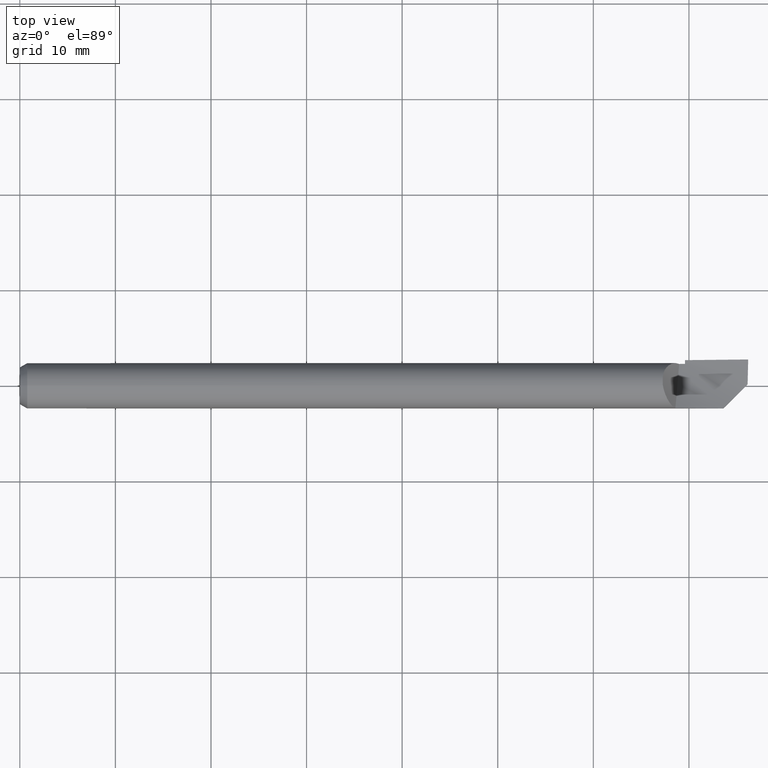
[diagram: clean part render]
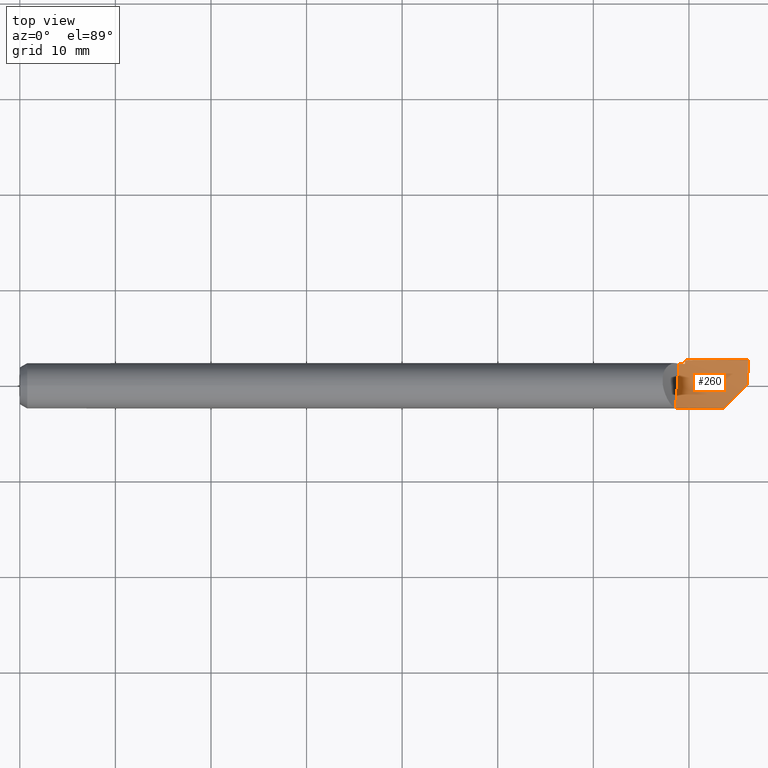
[diagram: same view with one face highlighted and labeled with its STEP entity id]
A machine part, top view. The second image highlights one B-rep face of the part: STEP entity #260.
In plain terms, the highlighted face is a freeform B-spline surface patch.
Its self-contained STEP definition (entity closure, byte-faithful):
#4 = CARTESIAN_POINT ( 'NONE',  ( 2.608888888888890367, -0.1464554548162472769, 0.06217323221623742568 ) ) ;
#11 = EDGE_CURVE ( 'NONE', #238, #373, #43, .T. ) ;
#17 =( BOUNDED_CURVE ( )  B_SPLINE_CURVE ( 3, ( #324, #480, #331, #125 ),
 .UNSPECIFIED., .F., .T. ) 
 B_SPLINE_CURVE_WITH_KNOTS ( ( 4, 4 ),
 ( 9.255808676291139381E-05, 0.0004782894125386866571 ),
 .UNSPECIFIED. ) 
 CURVE ( )  GEOMETRIC_REPRESENTATION_ITEM ( )  RATIONAL_B_SPLINE_CURVE ( ( 0.9805422023702108358, 0.9794517822317697631, 0.9784376960691193448, 0.9774999438822595810 ) ) 
 REPRESENTATION_ITEM ( '' )  );
#20 = ORIENTED_EDGE ( 'NONE', *, *, #11, .F. ) ;
#21 = B_SPLINE_CURVE_WITH_KNOTS ( 'NONE', 3,
 ( #155, #203, #108, #619 ),
 .UNSPECIFIED., .F., .F.,
 ( 4, 4 ),
 ( 8.350654211293258441E-05, 0.003719369236180132456 ),
 .UNSPECIFIED. ) ;
#30 = EDGE_CURVE ( 'NONE', #238, #315, #17, .T. ) ;
#43 =( BOUNDED_CURVE ( )  B_SPLINE_CURVE ( 2, ( #181, #234, #440 ),
 .UNSPECIFIED., .F., .T. ) 
 B_SPLINE_CURVE_WITH_KNOTS ( ( 3, 3 ),
 ( 0.6680663190920054229, 1.000000000000000000 ),
 .UNSPECIFIED. ) 
 CURVE ( )  GEOMETRIC_REPRESENTATION_ITEM ( )  RATIONAL_B_SPLINE_CURVE ( ( 0.9805422023702408119, 0.9779011347166750578, 0.9859596877570645512 ) ) 
 REPRESENTATION_ITEM ( '' )  );
#54 = VERTEX_POINT ( 'NONE', #241 ) ;
#70 = CARTESIAN_POINT ( 'NONE',  ( 2.700193042709060354, -0.09159678206204596718, 0.01949988679965270963 ) ) ;
#82 = CARTESIAN_POINT ( 'NONE',  ( 2.999392605994886107, 0.09182044360717109277, -0.003761190601293711629 ) ) ;
#99 = CARTESIAN_POINT ( 'NONE',  ( 2.804444444444444962, -0.05801151602296240190, -0.01215007406928548216 ) ) ;
#108 = CARTESIAN_POINT ( 'NONE',  ( 2.930128296819551004, -0.06052170318045124731, -0.007005743369842811798 ) ) ;
#113 = CARTESIAN_POINT ( 'NONE',  ( 2.413333333333334885, 0.1493616491026159843, -0.06033940939105427587 ) ) ;
#123 = CARTESIAN_POINT ( 'NONE',  ( 2.897117201850305079, -0.09353279814969600592, 0.004683820052929582589 ) ) ;
#125 = CARTESIAN_POINT ( 'NONE',  ( 2.740000000000000213, 0.09093235533035093354, -0.02239708137674525229 ) ) ;
#150 = ORIENTED_EDGE ( 'NONE', *, *, #272, .T. ) ;
#153 = CARTESIAN_POINT ( 'NONE',  ( 3.000000000000000444, 0.05471458349321915021, -0.02081601275344908270 ) ) ;
#154 = VERTEX_POINT ( 'NONE', #662 ) ;
#155 = CARTESIAN_POINT ( 'NONE',  ( 2.997655768038555379, 0.007005768038554139807, -0.01187811945948918924 ) ) ;
#156 = CARTESIAN_POINT ( 'NONE',  ( 2.217777777777779846, -0.1200748292999250927, 0.1043874820955170424 ) ) ;
#163 = CARTESIAN_POINT ( 'NONE',  ( 2.413333333333334885, -0.05892680970412268737, 0.006371137203487211263 ) ) ;
#166 = CARTESIAN_POINT ( 'NONE',  ( 2.715594912558478846, 0.09047690327886794004, -0.02417131508764841161 ) ) ;
#179 = CARTESIAN_POINT ( 'NONE',  ( 2.705461078765242888, -0.03340762941110823198, -0.004274625996444173480 ) ) ;
#181 = CARTESIAN_POINT ( 'NONE',  ( 2.740000000000000657, 0.1061466846906607003, -0.02247512690023037440 ) ) ;
#182 = B_SPLINE_CURVE_WITH_KNOTS ( 'NONE', 3,
 ( #387, #82, #599, #399, #499, #333 ),
 .UNSPECIFIED., .F., .F.,
 ( 4, 2, 4 ),
 ( 1.390217896785067265E-20, 0.001298834698926967096, 0.002597669397853934192 ),
 .UNSPECIFIED. ) ;
#183 = CARTESIAN_POINT ( 'NONE',  ( 2.997655768038555379, 0.007005768038554139807, -0.01187811945948918924 ) ) ;
#203 = CARTESIAN_POINT ( 'NONE',  ( 2.963644875374282783, -0.02700512462571755257, -0.01248061532669236980 ) ) ;
#207 = CARTESIAN_POINT ( 'NONE',  ( 2.217777777777779846, -0.05650037319417050563, 0.01531991718997334669 ) ) ;
#215 = CARTESIAN_POINT ( 'NONE',  ( 2.608888888888889479, 0.04560415947165991080, -0.03670494071200245539 ) ) ;
#226 = CARTESIAN_POINT ( 'NONE',  ( 2.700193042709059466, -0.09159678206204596718, 0.01949988679965270963 ) ) ;
#234 = CARTESIAN_POINT ( 'NONE',  ( 2.870718729444908135, 0.1084999999999999853, -0.01136076838170600213 ) ) ;
#238 = VERTEX_POINT ( 'NONE', #268 ) ;
#241 = CARTESIAN_POINT ( 'NONE',  ( 2.715594912558478846, 0.09047690327886794004, -0.02417131508764841161 ) ) ;
#249 = B_SPLINE_CURVE_WITH_KNOTS ( 'NONE', 3,
 ( #166, #276, #325, #179, #374, #70 ),
 .UNSPECIFIED., .F., .F.,
 ( 4, 2, 4 ),
 ( 0.000000000000000000, 0.5000000000000000000, 1.000000000000000000 ),
 .UNSPECIFIED. ) ;
#254 = FACE_OUTER_BOUND ( 'NONE', #539, .T. ) ;
#260 = ADVANCED_FACE ( 'NONE', ( #254 ), #344, .T. ) ;
#268 = CARTESIAN_POINT ( 'NONE',  ( 2.740000000000000657, 0.1061466846906607003, -0.02247512690023037440 ) ) ;
#272 = EDGE_CURVE ( 'NONE', #315, #54, #631, .T. ) ;
#276 = CARTESIAN_POINT ( 'NONE',  ( 2.713059819998396627, 0.05925281071930989935, -0.02311055806310817820 ) ) ;
#304 = CARTESIAN_POINT ( 'NONE',  ( 2.217777777777779846, 0.03202968257815186348, -0.04900093333530534945 ) ) ;
#315 = VERTEX_POINT ( 'NONE', #595 ) ;
#316 = CARTESIAN_POINT ( 'NONE',  ( 2.804444444444444962, 0.05141765096347571812, -0.02948195143761270925 ) ) ;
#324 = CARTESIAN_POINT ( 'NONE',  ( 2.740000000000000657, 0.1061466846906607142, -0.02247512690023037787 ) ) ;
#325 = CARTESIAN_POINT ( 'NONE',  ( 2.710526309159210889, 0.02787531357983590377, -0.01890264624611028704 ) ) ;
#331 = CARTESIAN_POINT ( 'NONE',  ( 2.740000000000000213, 0.09600583268713319685, -0.02250031455102175643 ) ) ;
#333 = CARTESIAN_POINT ( 'NONE',  ( 2.997655768038555379, 0.007005768038554139807, -0.01187811945948918924 ) ) ;
#344 =( BOUNDED_SURFACE ( )  B_SPLINE_SURFACE ( 3, 2, ( 
 ( #372, #575, #4, #634, #156 ),
 ( #525, #99, #622, #163, #207 ),
 ( #153, #316, #215, #417, #304 ),
 ( #518, #355, #583, #113, #531 ) ),
 .UNSPECIFIED., .F., .F., .F. ) 
 B_SPLINE_SURFACE_WITH_KNOTS ( ( 4, 4 ),
 ( 3, 2, 3 ),
 ( 0.000000000000000000, 1.000000000000000000 ),
 ( 0.000000000000000000, 0.5000000000000000000, 1.000000000000000000 ),
 .UNSPECIFIED. ) 
 GEOMETRIC_REPRESENTATION_ITEM ( )  RATIONAL_B_SPLINE_SURFACE ( (
 ( 1.000000000000000000, 0.9876883405951377704, 1.000000000000000000, 0.9876883405951377704, 1.000000000000000000),
 ( 0.9656170249359767865, 0.9537286770094286492, 0.9656170249359767865, 0.9537286770094286492, 0.9656170249359767865),
 ( 0.9656170249359767865, 0.9537286770094286492, 0.9656170249359767865, 0.9537286770094286492, 0.9656170249359767865),
 ( 1.000000000000000000, 0.9876883405951377704, 1.000000000000000000, 0.9876883405951377704, 1.000000000000000000) ) ) 
 REPRESENTATION_ITEM ( '' )  SURFACE ( )  );
#355 = CARTESIAN_POINT ( 'NONE',  ( 2.804444444444444962, 0.1606972725960162107, -0.01123090061018719617 ) ) ;
#372 = CARTESIAN_POINT ( 'NONE',  ( 3.000000000000000444, -0.1584999999999997522, 0.01387303318125172359 ) ) ;
#373 = VERTEX_POINT ( 'NONE', #600 ) ;
#374 = CARTESIAN_POINT ( 'NONE',  ( 2.702929359211318161, -0.06330286871536656979, 0.006143045300848121344 ) ) ;
#376 = ORIENTED_EDGE ( 'NONE', *, *, #30, .T. ) ;
#381 = CARTESIAN_POINT ( 'NONE',  ( 2.798652350113996157, -0.09316285039222937936, 0.01207143284203153130 ) ) ;
#387 = CARTESIAN_POINT ( 'NONE',  ( 3.000000000000000444, 0.1084999999999999992, 0.000000000000000000 ) ) ;
#399 = CARTESIAN_POINT ( 'NONE',  ( 2.998113741625893169, 0.04115732881145420935, -0.01057558320799732721 ) ) ;
#401 = ORIENTED_EDGE ( 'NONE', *, *, #663, .F. ) ;
#409 = CARTESIAN_POINT ( 'NONE',  ( 2.715594912558478846, 0.09047690327886794004, -0.02417131508764841161 ) ) ;
#410 = ORIENTED_EDGE ( 'NONE', *, *, #610, .F. ) ;
#416 = VERTEX_POINT ( 'NONE', #123 ) ;
#417 = CARTESIAN_POINT ( 'NONE',  ( 2.413333333333334885, 0.03979066797984411735, -0.04392792998639220847 ) ) ;
#431 = CARTESIAN_POINT ( 'NONE',  ( 2.897117201850305523, -0.09353279814969600592, 0.004683820052929582589 ) ) ;
#440 = CARTESIAN_POINT ( 'NONE',  ( 3.000000000000000444, 0.1084999999999999992, 0.000000000000000000 ) ) ;
#468 = CARTESIAN_POINT ( 'NONE',  ( 2.740000000000000213, 0.09093235533035093354, -0.02239708137674525229 ) ) ;
#480 = CARTESIAN_POINT ( 'NONE',  ( 2.740000000000000213, 0.1010776689460062688, -0.02252625180451629794 ) ) ;
#499 = CARTESIAN_POINT ( 'NONE',  ( 2.997830013075210687, 0.02404371989727049561, -0.01166998164447425115 ) ) ;
#505 = EDGE_CURVE ( 'NONE', #54, #154, #249, .T. ) ;
#514 =( BOUNDED_CURVE ( )  B_SPLINE_CURVE ( 2, ( #226, #381, #431 ),
 .UNSPECIFIED., .F., .T. ) 
 B_SPLINE_CURVE_WITH_KNOTS ( ( 3, 3 ),
 ( 0.6173980248220608535, 0.8679066118161342658 ),
 .UNSPECIFIED. ) 
 CURVE ( )  GEOMETRIC_REPRESENTATION_ITEM ( )  RATIONAL_B_SPLINE_CURVE ( ( 0.9785522738925219732, 0.9753364756070597164, 0.9781958891234434628 ) ) 
 REPRESENTATION_ITEM ( '' )  );
#518 = CARTESIAN_POINT ( 'NONE',  ( 3.000000000000000444, 0.1584999999999999187, 0.01387303318125179125 ) ) ;
#525 = CARTESIAN_POINT ( 'NONE',  ( 3.000000000000000444, -0.05471458349321896980, -0.02081601275344908270 ) ) ;
#531 = CARTESIAN_POINT ( 'NONE',  ( 2.217777777777779846, 0.1363835579169330459, -0.08194044288119670116 ) ) ;
#535 = EDGE_CURVE ( 'NONE', #154, #416, #514, .T. ) ;
#539 = EDGE_LOOP ( 'NONE', ( #410, #20, #376, #150, #590, #572, #401 ) ) ;
#572 = ORIENTED_EDGE ( 'NONE', *, *, #535, .T. ) ;
#575 = CARTESIAN_POINT ( 'NONE',  ( 2.804444444444444962, -0.1563027274039834602, 0.03897696697269068672 ) ) ;
#583 = CARTESIAN_POINT ( 'NONE',  ( 2.608888888888890367, 0.1550294608493161252, -0.03578515500062074556 ) ) ;
#590 = ORIENTED_EDGE ( 'NONE', *, *, #505, .T. ) ;
#595 = CARTESIAN_POINT ( 'NONE',  ( 2.740000000000000213, 0.09093235533035093354, -0.02239708137674525229 ) ) ;
#599 = CARTESIAN_POINT ( 'NONE',  ( 2.998894889242268658, 0.07501483299892772183, -0.006620206759045572063 ) ) ;
#600 = CARTESIAN_POINT ( 'NONE',  ( 3.000000000000000444, 0.1084999999999999992, 0.000000000000000000 ) ) ;
#601 = VERTEX_POINT ( 'NONE', #183 ) ;
#610 = EDGE_CURVE ( 'NONE', #373, #601, #182, .T. ) ;
#619 = CARTESIAN_POINT ( 'NONE',  ( 2.897117201850305079, -0.09353279814969600592, 0.004683820052929582589 ) ) ;
#622 = CARTESIAN_POINT ( 'NONE',  ( 2.608888888888889479, -0.05846916286354254116, -0.002889468432899133278 ) ) ;
#631 =( BOUNDED_CURVE ( )  B_SPLINE_CURVE ( 2, ( #468, #680, #409 ),
 .UNSPECIFIED., .F., .T. ) 
 B_SPLINE_CURVE_WITH_KNOTS ( ( 3, 3 ),
 ( 0.3319336809084335593, 0.3630297608688277111 ),
 .UNSPECIFIED. ) 
 CURVE ( )  GEOMETRIC_REPRESENTATION_ITEM ( )  RATIONAL_B_SPLINE_CURVE ( ( 0.9774999438821363462, 0.9777465956879387576, 0.9780868586215529792 ) ) 
 REPRESENTATION_ITEM ( '' )  );
#634 = CARTESIAN_POINT ( 'NONE',  ( 2.413333333333334885, -0.1366081822285111214, 0.08536949745978415771 ) ) ;
#662 = CARTESIAN_POINT ( 'NONE',  ( 2.700193042709060354, -0.09159678206204596718, 0.01949988679965270963 ) ) ;
#663 = EDGE_CURVE ( 'NONE', #601, #416, #21, .T. ) ;
#680 = CARTESIAN_POINT ( 'NONE',  ( 2.727790124694640550, 0.09071330555731091372, -0.02328642545694240701 ) ) ;